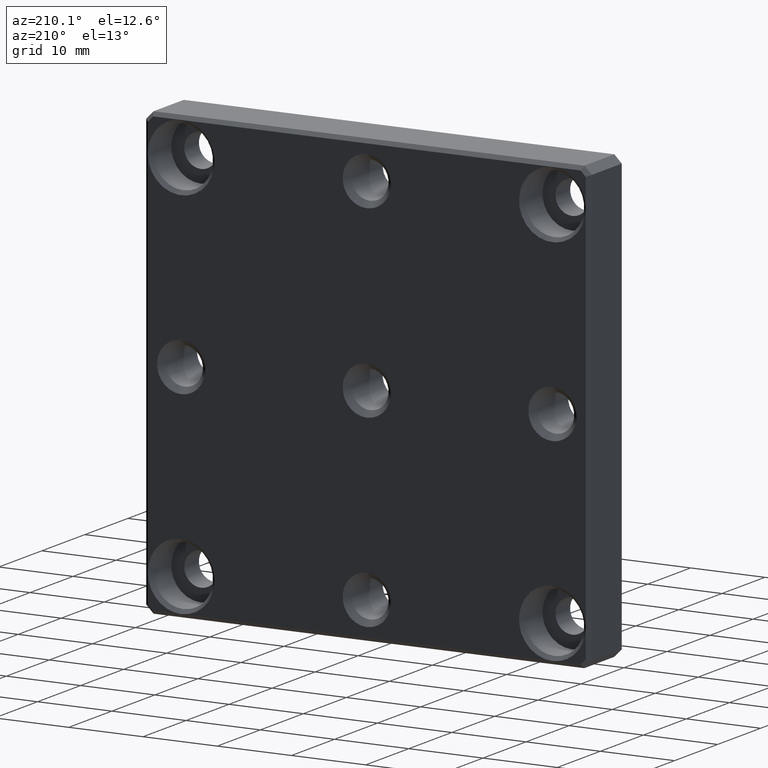
[diagram: clean part render]
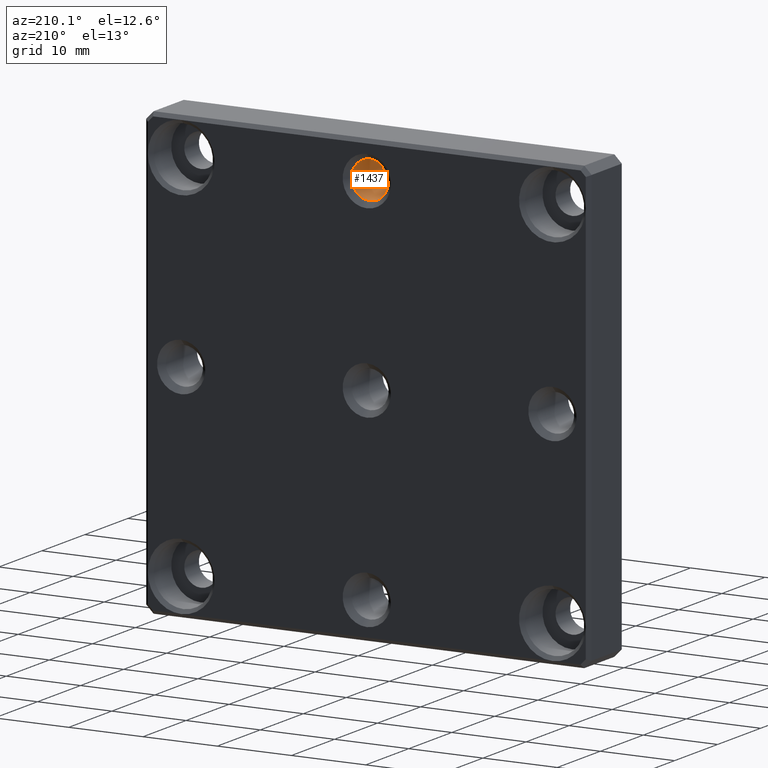
[diagram: same view with one face highlighted and labeled with its STEP entity id]
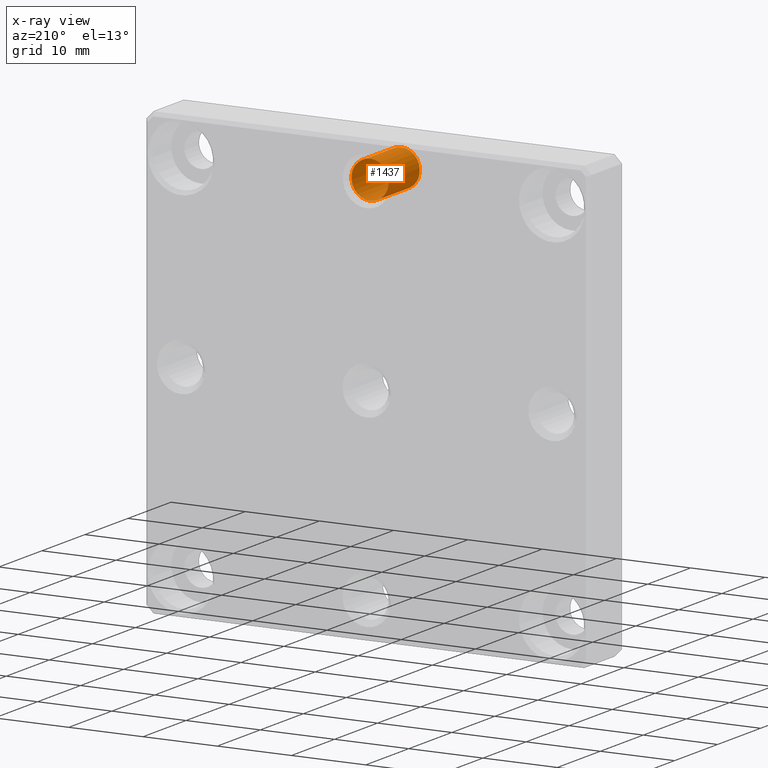
[diagram: x-ray of the same camera — body ghosted, the highlighted face saturated]
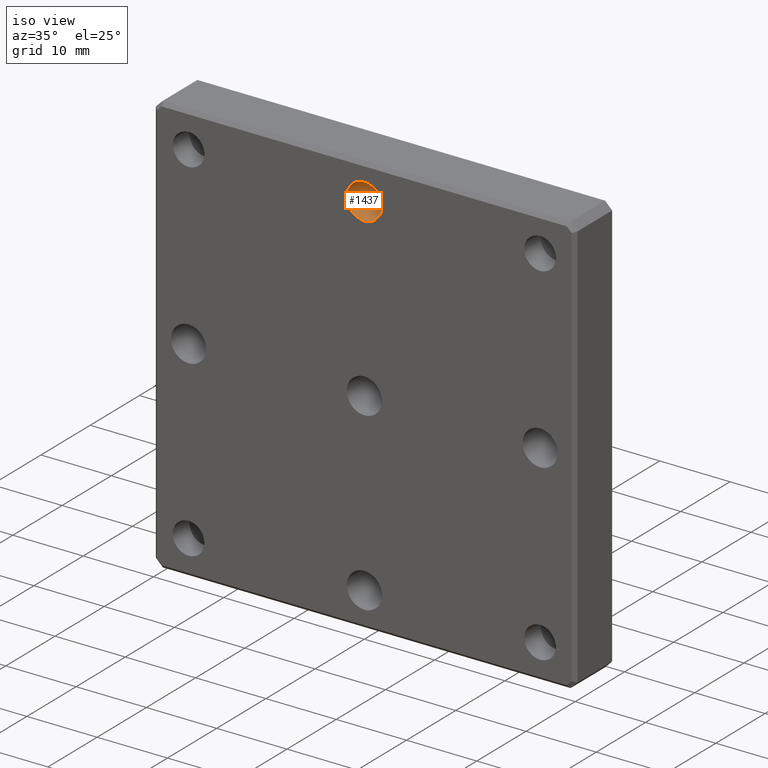
[diagram: same view with one face highlighted and labeled with its STEP entity id]
A machine part, auxiliary view. The second image highlights one B-rep face of the part: STEP entity #1437.
The next image is the same camera in x-ray: the body ghosted, the highlighted face saturated — about 1% of this face is hidden behind the body in this view.
A second angle (iso view) of the same face is appended — the face is thin or edge-on in the first view.
In plain terms, the highlighted cylindrical surface (bore or boss wall) has radius 2.5 mm, axis along (-0, 1, -0).
Its self-contained STEP definition (entity closure, byte-faithful):
#100 = CARTESIAN_POINT ( 'NONE',  ( 3.469446951953614189E-15, 0.000000000000000000, 27.50000000000000000 ) ) ;
#212 = ORIENTED_EDGE ( 'NONE', *, *, #785, .T. ) ;
#228 = AXIS2_PLACEMENT_3D ( 'NONE', #399, #1343, #1010 ) ;
#270 = DIRECTION ( 'NONE',  ( 0.000000000000000000, 0.000000000000000000, 1.000000000000000000 ) ) ;
#331 = DIRECTION ( 'NONE',  ( 0.000000000000000000, 0.000000000000000000, 1.000000000000000000 ) ) ;
#399 = CARTESIAN_POINT ( 'NONE',  ( 3.469446951953614189E-15, 8.000000000000000000, 25.00000000000000000 ) ) ;
#577 = EDGE_LOOP ( 'NONE', ( #212 ) ) ;
#642 = AXIS2_PLACEMENT_3D ( 'NONE', #917, #1409, #331 ) ;
#651 = CYLINDRICAL_SURFACE ( 'NONE', #228, 2.499999999999998668 ) ;
#686 = AXIS2_PLACEMENT_3D ( 'NONE', #851, #1321, #270 ) ;
#765 = FACE_OUTER_BOUND ( 'NONE', #577, .T. ) ;
#785 = EDGE_CURVE ( 'NONE', #1389, #1389, #1031, .T. ) ;
#834 = EDGE_LOOP ( 'NONE', ( #1253 ) ) ;
#851 = CARTESIAN_POINT ( 'NONE',  ( 3.469446951953614189E-15, 0.000000000000000000, 25.00000000000000000 ) ) ;
#903 = VERTEX_POINT ( 'NONE', #100 ) ;
#917 = CARTESIAN_POINT ( 'NONE',  ( 3.469446951953614189E-15, 7.249999999999999112, 25.00000000000000000 ) ) ;
#977 = EDGE_CURVE ( 'NONE', #903, #903, #1200, .T. ) ;
#1004 = FACE_OUTER_BOUND ( 'NONE', #834, .T. ) ;
#1010 = DIRECTION ( 'NONE',  ( 0.000000000000000000, 0.000000000000000000, 1.000000000000000000 ) ) ;
#1031 = CIRCLE ( 'NONE', #642, 2.499999999999998668 ) ;
#1200 = CIRCLE ( 'NONE', #686, 2.499999999999998668 ) ;
#1253 = ORIENTED_EDGE ( 'NONE', *, *, #977, .F. ) ;
#1261 = CARTESIAN_POINT ( 'NONE',  ( 3.469446951953614189E-15, 7.249999999999999112, 27.50000000000000000 ) ) ;
#1321 = DIRECTION ( 'NONE',  ( -0.000000000000000000, 1.000000000000000000, -0.000000000000000000 ) ) ;
#1343 = DIRECTION ( 'NONE',  ( -0.000000000000000000, 1.000000000000000000, -0.000000000000000000 ) ) ;
#1389 = VERTEX_POINT ( 'NONE', #1261 ) ;
#1409 = DIRECTION ( 'NONE',  ( -0.000000000000000000, 1.000000000000000000, -0.000000000000000000 ) ) ;
#1437 = ADVANCED_FACE ( 'NONE', ( #1004, #765 ), #651, .F. ) ;